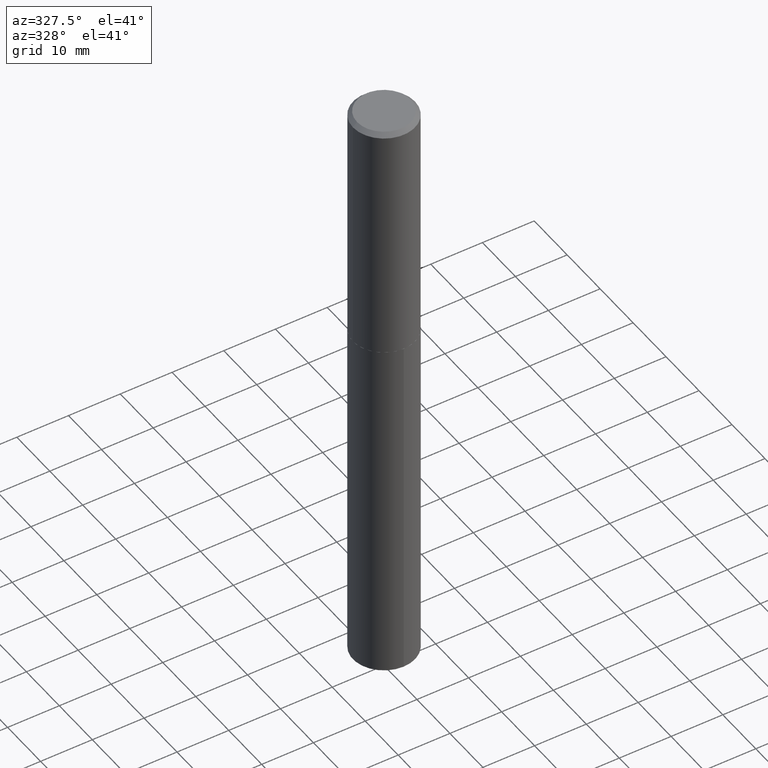
[diagram: clean part render]
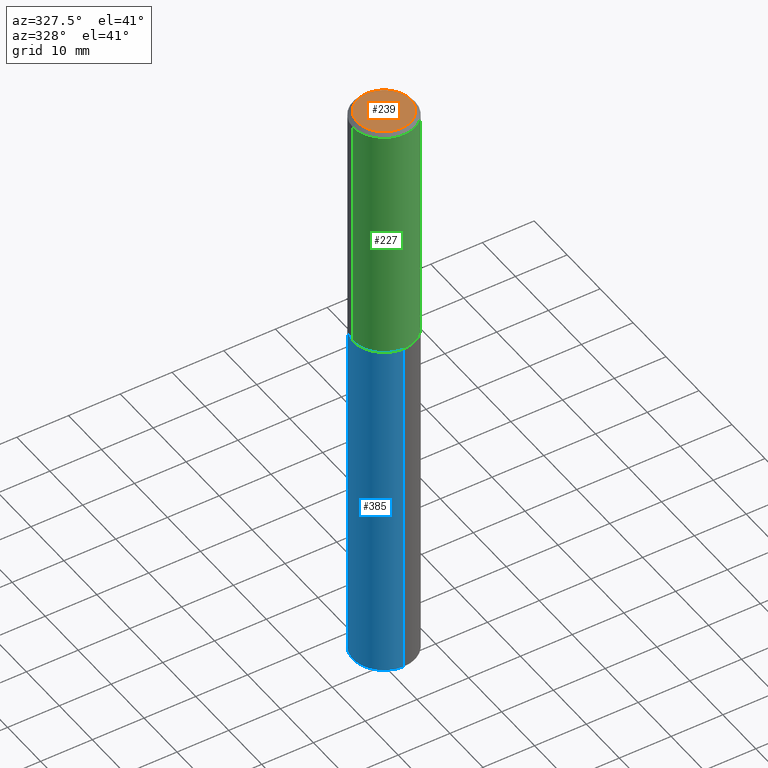
[diagram: same view with three faces highlighted in distinct colors, each labeled with its STEP entity id]
A machine part, auxiliary view with three faces highlighted in distinct colors.
Their STEP definitions:

[orange] entity #239 — the highlighted planar face has unit normal (0, -0, -1).
#46 = DIRECTION ( 'NONE',  ( -1.000000000000000000, 6.982962677686265922E-15, -4.876176775795935793E-29 ) ) ;
#58 = CARTESIAN_POINT ( 'NONE',  ( 0.2049499999999999933, -1.567808741777880040E-15, 4.818985154655325294E-18 ) ) ;
#75 = AXIS2_PLACEMENT_3D ( 'NONE', #276, #312, #46 ) ;
#82 = DIRECTION ( 'NONE',  ( -2.445468806185136597E-29, 3.491481338843145583E-15, 1.000000000000000000 ) ) ;
#83 = ORIENTED_EDGE ( 'NONE', *, *, #122, .T. ) ;
#86 = PLANE ( 'NONE',  #75 ) ;
#122 = EDGE_CURVE ( 'NONE', #249, #232, #241, .T. ) ;
#139 = EDGE_LOOP ( 'NONE', ( #141, #83 ) ) ;
#140 = DIRECTION ( 'NONE',  ( -2.445468806185136597E-29, 3.491481338843145583E-15, 1.000000000000000000 ) ) ;
#141 = ORIENTED_EDGE ( 'NONE', *, *, #219, .T. ) ;
#173 = AXIS2_PLACEMENT_3D ( 'NONE', #236, #140, #291 ) ;
#194 = FACE_OUTER_BOUND ( 'NONE', #139, .T. ) ;
#200 = DIRECTION ( 'NONE',  ( 1.000000000000000000, -6.982962677686266711E-15, 4.876118559169178830E-29 ) ) ;
#208 = CIRCLE ( 'NONE', #173, 0.2049499999999999933 ) ;
#217 = AXIS2_PLACEMENT_3D ( 'NONE', #228, #82, #200 ) ;
#219 = EDGE_CURVE ( 'NONE', #232, #249, #208, .T. ) ;
#228 = CARTESIAN_POINT ( 'NONE',  ( -1.178467787315321149E-46, 1.682539673960460649E-32, 4.818985154644839761E-18 ) ) ;
#232 = VERTEX_POINT ( 'NONE', #251 ) ;
#236 = CARTESIAN_POINT ( 'NONE',  ( -1.178467787315321149E-46, 1.682539673960460649E-32, 4.818985154644839761E-18 ) ) ;
#239 = ADVANCED_FACE ( 'NONE', ( #194 ), #86, .F. ) ;
#241 = CIRCLE ( 'NONE', #217, 0.2049499999999999933 ) ;
#249 = VERTEX_POINT ( 'NONE', #58 ) ;
#251 = CARTESIAN_POINT ( 'NONE',  ( -0.2049499999999999933, 1.485712596711223663E-15, 4.818985154634640807E-18 ) ) ;
#276 = CARTESIAN_POINT ( 'NONE',  ( -5.892338936576605744E-47, 8.412698369802303245E-33, 2.409492577322419881E-18 ) ) ;
#291 = DIRECTION ( 'NONE',  ( 1.000000000000000000, -6.982962677686266711E-15, 4.876118559169178830E-29 ) ) ;
#312 = DIRECTION ( 'NONE',  ( 2.438088387897960049E-29, -3.491481338843145188E-15, -1.000000000000000000 ) ) ;

[blue] entity #385 — the highlighted cylindrical surface (partial cylindrical patch) has radius 5.9995 mm, axis along (-0, 0, 1).
#2 = EDGE_CURVE ( 'NONE', #155, #21, #319, .T. ) ;
#21 = VERTEX_POINT ( 'NONE', #138 ) ;
#25 = AXIS2_PLACEMENT_3D ( 'NONE', #278, #206, #245 ) ;
#29 = ORIENTED_EDGE ( 'NONE', *, *, #350, .F. ) ;
#36 = DIRECTION ( 'NONE',  ( -2.445391842571962110E-29, 3.491591555117708420E-15, 1.000000000000000000 ) ) ;
#40 = CARTESIAN_POINT ( 'NONE',  ( 1.678301941865467821E-15, 0.2361999999999840893, -4.552958345659752659 ) ) ;
#59 = CIRCLE ( 'NONE', #25, 0.2361999999999999933 ) ;
#108 = AXIS2_PLACEMENT_3D ( 'NONE', #258, #321, #203 ) ;
#109 = CARTESIAN_POINT ( 'NONE',  ( 1.678301941865468807E-15, 0.2361999999999935818, -1.850700000000000900 ) ) ;
#123 = VECTOR ( 'NONE', #159, 39.37007874015748143 ) ;
#131 = CARTESIAN_POINT ( 'NONE',  ( 4.525829119606832626E-29, -6.461684513797009689E-15, -1.850700000000000012 ) ) ;
#138 = CARTESIAN_POINT ( 'NONE',  ( -1.649375784469450574E-15, -0.2362000000000064603, -1.850699999999999124 ) ) ;
#154 = DIRECTION ( 'NONE',  ( -6.982962677686265922E-15, -1.000000000000000000, 3.469747663417777397E-15 ) ) ;
#155 = VERTEX_POINT ( 'NONE', #109 ) ;
#159 = DIRECTION ( 'NONE',  ( -2.445391842571962110E-29, 3.491591555117708420E-15, 1.000000000000000000 ) ) ;
#160 = EDGE_CURVE ( 'NONE', #363, #289, #59, .T. ) ;
#186 = CARTESIAN_POINT ( 'NONE',  ( 1.678301941865401754E-15, 0.2361999999999935540, -1.850700000000000900 ) ) ;
#195 = AXIS2_PLACEMENT_3D ( 'NONE', #131, #367, #154 ) ;
#203 = DIRECTION ( 'NONE',  ( -6.982962677686265922E-15, -1.000000000000000000, 3.469747663417777397E-15 ) ) ;
#206 = DIRECTION ( 'NONE',  ( -2.445391842571962110E-29, 3.491591555117708420E-15, 1.000000000000000000 ) ) ;
#210 = CYLINDRICAL_SURFACE ( 'NONE', #195, 0.2361999999999999933 ) ;
#240 = FACE_OUTER_BOUND ( 'NONE', #318, .T. ) ;
#245 = DIRECTION ( 'NONE',  ( -6.982962677686265922E-15, -1.000000000000000000, 4.626330217890369336E-15 ) ) ;
#258 = CARTESIAN_POINT ( 'NONE',  ( 4.525829119606832626E-29, -6.461684513797009689E-15, -1.850700000000000012 ) ) ;
#278 = CARTESIAN_POINT ( 'NONE',  ( 1.113390963460519513E-28, -1.589686693324894697E-14, -4.552958345659751771 ) ) ;
#289 = VERTEX_POINT ( 'NONE', #314 ) ;
#303 = LINE ( 'NONE', #186, #123 ) ;
#306 = VECTOR ( 'NONE', #36, 39.37007874015748143 ) ;
#314 = CARTESIAN_POINT ( 'NONE',  ( -1.649375784469384507E-15, -0.2362000000000158972, -4.552958345659750883 ) ) ;
#315 = ORIENTED_EDGE ( 'NONE', *, *, #2, .F. ) ;
#318 = EDGE_LOOP ( 'NONE', ( #29, #389, #332, #315 ) ) ;
#319 = CIRCLE ( 'NONE', #108, 0.2361999999999999933 ) ;
#321 = DIRECTION ( 'NONE',  ( -2.445391842571962110E-29, 3.491591555117708420E-15, 1.000000000000000000 ) ) ;
#332 = ORIENTED_EDGE ( 'NONE', *, *, #338, .T. ) ;
#335 = CARTESIAN_POINT ( 'NONE',  ( -1.649375784469450574E-15, -0.2362000000000064603, -1.850699999999999124 ) ) ;
#338 = EDGE_CURVE ( 'NONE', #289, #21, #358, .T. ) ;
#350 = EDGE_CURVE ( 'NONE', #363, #155, #303, .T. ) ;
#358 = LINE ( 'NONE', #335, #306 ) ;
#363 = VERTEX_POINT ( 'NONE', #40 ) ;
#367 = DIRECTION ( 'NONE',  ( -2.445391842571962110E-29, 3.491591555117708420E-15, 1.000000000000000000 ) ) ;
#385 = ADVANCED_FACE ( 'NONE', ( #240 ), #210, .T. ) ;
#389 = ORIENTED_EDGE ( 'NONE', *, *, #160, .T. ) ;

[green] entity #227 — the highlighted cylindrical surface (partial cylindrical patch) has radius 5.9995 mm, axis along (-0, 0, 1).
#30 = CARTESIAN_POINT ( 'NONE',  ( -0.2362000000000001321, 1.678301941865357577E-15, -1.161852468318209457E-29 ) ) ;
#31 = DIRECTION ( 'NONE',  ( -2.445468806185136597E-29, 3.491481338843145583E-15, 1.000000000000000000 ) ) ;
#39 = ORIENTED_EDGE ( 'NONE', *, *, #150, .T. ) ;
#47 = LINE ( 'NONE', #178, #390 ) ;
#70 = CARTESIAN_POINT ( 'NONE',  ( 0.2362000000000002709, -8.109314557597087077E-15, -1.850200000000000067 ) ) ;
#74 = DIRECTION ( 'NONE',  ( 1.000000000000000000, -6.982962677686266711E-15, 4.876176775795936353E-29 ) ) ;
#78 = CARTESIAN_POINT ( 'NONE',  ( -0.2362000000000002709, -4.781636831262230214E-15, -1.850200000000000067 ) ) ;
#87 = ORIENTED_EDGE ( 'NONE', *, *, #101, .F. ) ;
#88 = DIRECTION ( 'NONE',  ( -2.445468806185136877E-29, 3.491481338843145188E-15, 1.000000000000000000 ) ) ;
#101 = EDGE_CURVE ( 'NONE', #287, #174, #248, .T. ) ;
#111 = DIRECTION ( 'NONE',  ( 1.000000000000000000, -6.982962677686266711E-15, 0.000000000000000000 ) ) ;
#117 = EDGE_CURVE ( 'NONE', #174, #170, #187, .T. ) ;
#150 = EDGE_CURVE ( 'NONE', #347, #170, #47, .T. ) ;
#157 = AXIS2_PLACEMENT_3D ( 'NONE', #373, #31, #74 ) ;
#167 = DIRECTION ( 'NONE',  ( 1.000000000000000000, -6.982962677686269077E-15, 0.000000000000000000 ) ) ;
#168 = DIRECTION ( 'NONE',  ( -2.445468806185136597E-29, 3.491481338843145583E-15, 1.000000000000000000 ) ) ;
#170 = VERTEX_POINT ( 'NONE', #263 ) ;
#174 = VERTEX_POINT ( 'NONE', #197 ) ;
#175 = EDGE_CURVE ( 'NONE', #287, #347, #370, .T. ) ;
#178 = CARTESIAN_POINT ( 'NONE',  ( 0.2362000000000001321, -1.649375784469497117E-15, 1.151752954443000789E-29 ) ) ;
#181 = DIRECTION ( 'NONE',  ( -2.445468806185136597E-29, 3.491481338843145583E-15, 1.000000000000000000 ) ) ;
#187 = CIRCLE ( 'NONE', #352, 0.2361999999999999933 ) ;
#197 = CARTESIAN_POINT ( 'NONE',  ( -0.2361999999999999933, -1.606221840617860474E-15, -0.03125000000000022898 ) ) ;
#207 = CARTESIAN_POINT ( 'NONE',  ( 7.642090019328607041E-31, -1.091087918388490883E-16, -0.03125000000000022898 ) ) ;
#224 = ORIENTED_EDGE ( 'NONE', *, *, #175, .T. ) ;
#227 = ADVANCED_FACE ( 'NONE', ( #324 ), #356, .T. ) ;
#248 = LINE ( 'NONE', #30, #327 ) ;
#255 = EDGE_LOOP ( 'NONE', ( #87, #224, #39, #351 ) ) ;
#263 = CARTESIAN_POINT ( 'NONE',  ( 0.2361999999999999933, -1.758484576308345231E-15, -0.03125000000000022898 ) ) ;
#287 = VERTEX_POINT ( 'NONE', #78 ) ;
#320 = AXIS2_PLACEMENT_3D ( 'NONE', #339, #181, #167 ) ;
#324 = FACE_OUTER_BOUND ( 'NONE', #255, .T. ) ;
#327 = VECTOR ( 'NONE', #88, 39.37007874015748143 ) ;
#339 = CARTESIAN_POINT ( 'NONE',  ( 4.524606385203739825E-29, -6.459938773127588186E-15, -1.850200000000000067 ) ) ;
#347 = VERTEX_POINT ( 'NONE', #70 ) ;
#351 = ORIENTED_EDGE ( 'NONE', *, *, #117, .F. ) ;
#352 = AXIS2_PLACEMENT_3D ( 'NONE', #207, #168, #111 ) ;
#355 = DIRECTION ( 'NONE',  ( -2.445468806185136877E-29, 3.491481338843145188E-15, 1.000000000000000000 ) ) ;
#356 = CYLINDRICAL_SURFACE ( 'NONE', #157, 0.2362000000000001321 ) ;
#370 = CIRCLE ( 'NONE', #320, 0.2362000000000002709 ) ;
#373 = CARTESIAN_POINT ( 'NONE',  ( 0.000000000000000000, 0.000000000000000000, 0.000000000000000000 ) ) ;
#390 = VECTOR ( 'NONE', #355, 39.37007874015748143 ) ;